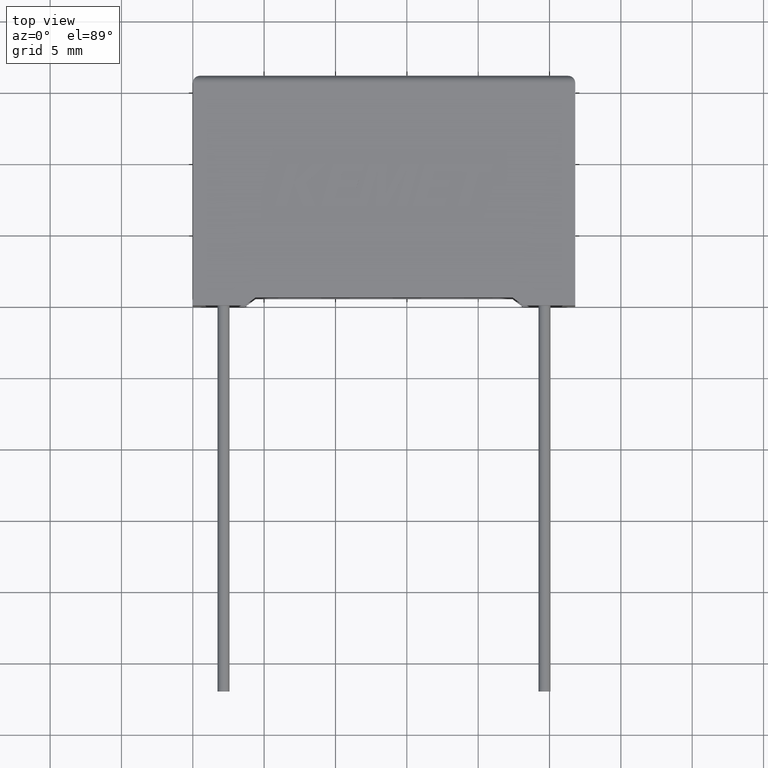
[diagram: clean part render]
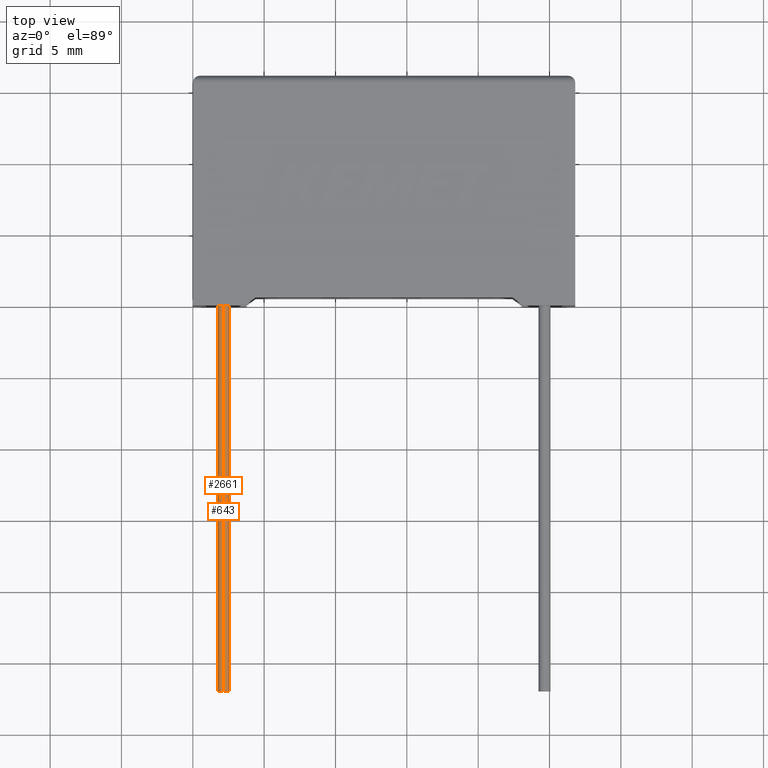
[diagram: same view with one multi-face feature highlighted, each face labeled with its STEP entity id]
A machine part, top view. The highlighted faces form ONE feature: a constant-radius fillet chain: 2 tangent blend faces with common blend radius 0.425 mm. The faces share edges in the B-rep.
Their STEP definitions:
[1] entity #2661 (Cylinder):
#27 = CYLINDRICAL_SURFACE ( 'NONE', #521, 0.4249999999999996003 ) ;
#68 = CARTESIAN_POINT ( 'NONE',  ( 2.150000000000000799, -27.00000000000000000, 4.025000000000000355 ) ) ;
#82 = DIRECTION ( 'NONE',  ( 0.000000000000000000, 0.000000000000000000, 1.000000000000000000 ) ) ;
#105 = EDGE_LOOP ( 'NONE', ( #861, #1336, #2743, #624 ) ) ;
#400 = DIRECTION ( 'NONE',  ( 0.000000000000000000, -1.000000000000000000, 0.000000000000000000 ) ) ;
#467 = CARTESIAN_POINT ( 'NONE',  ( 2.150000000000000799, 0.7500000000000000000, 3.600000000000000533 ) ) ;
#489 = FACE_OUTER_BOUND ( 'NONE', #105, .T. ) ;
#521 = AXIS2_PLACEMENT_3D ( 'NONE', #993, #1236, #82 ) ;
#624 = ORIENTED_EDGE ( 'NONE', *, *, #2993, .T. ) ;
#669 = CARTESIAN_POINT ( 'NONE',  ( 2.150000000000000799, -27.00000000000000000, 3.175000000000000266 ) ) ;
#861 = ORIENTED_EDGE ( 'NONE', *, *, #1328, .F. ) ;
#901 = CIRCLE ( 'NONE', #1700, 0.4250000000000000444 ) ;
#922 = DIRECTION ( 'NONE',  ( 0.000000000000000000, -1.000000000000000000, 0.000000000000000000 ) ) ;
#983 = AXIS2_PLACEMENT_3D ( 'NONE', #2013, #400, #2216 ) ;
#993 = CARTESIAN_POINT ( 'NONE',  ( 2.150000000000000799, -27.00000000000000000, 3.600000000000000533 ) ) ;
#1089 = CARTESIAN_POINT ( 'NONE',  ( 2.150000000000000799, 0.7500000000000000000, 3.175000000000000266 ) ) ;
#1154 = DIRECTION ( 'NONE',  ( -0.000000000000000000, 1.000000000000000000, -0.000000000000000000 ) ) ;
#1172 = LINE ( 'NONE', #669, #2497 ) ;
#1217 = DIRECTION ( 'NONE',  ( -0.000000000000000000, 1.000000000000000000, -0.000000000000000000 ) ) ;
#1236 = DIRECTION ( 'NONE',  ( -0.000000000000000000, 1.000000000000000000, -0.000000000000000000 ) ) ;
#1312 = CARTESIAN_POINT ( 'NONE',  ( 2.150000000000000799, -27.00000000000000000, 3.175000000000000266 ) ) ;
#1328 = EDGE_CURVE ( 'NONE', #1675, #2550, #1172, .T. ) ;
#1336 = ORIENTED_EDGE ( 'NONE', *, *, #1874, .F. ) ;
#1675 = VERTEX_POINT ( 'NONE', #1312 ) ;
#1700 = AXIS2_PLACEMENT_3D ( 'NONE', #467, #922, #2321 ) ;
#1789 = EDGE_CURVE ( 'NONE', #2219, #2498, #2406, .T. ) ;
#1874 = EDGE_CURVE ( 'NONE', #2219, #1675, #2299, .T. ) ;
#2013 = CARTESIAN_POINT ( 'NONE',  ( 2.150000000000000799, -27.00000000000000000, 3.600000000000000533 ) ) ;
#2216 = DIRECTION ( 'NONE',  ( 0.000000000000000000, 0.000000000000000000, -1.000000000000000000 ) ) ;
#2219 = VERTEX_POINT ( 'NONE', #2461 ) ;
#2299 = CIRCLE ( 'NONE', #983, 0.4250000000000000444 ) ;
#2321 = DIRECTION ( 'NONE',  ( 0.000000000000000000, 0.000000000000000000, -1.000000000000000000 ) ) ;
#2406 = LINE ( 'NONE', #68, #2957 ) ;
#2461 = CARTESIAN_POINT ( 'NONE',  ( 2.150000000000000799, -27.00000000000000000, 4.025000000000000355 ) ) ;
#2497 = VECTOR ( 'NONE', #1154, 1000.000000000000000 ) ;
#2498 = VERTEX_POINT ( 'NONE', #2513 ) ;
#2513 = CARTESIAN_POINT ( 'NONE',  ( 2.150000000000000799, 0.7500000000000000000, 4.025000000000000355 ) ) ;
#2550 = VERTEX_POINT ( 'NONE', #1089 ) ;
#2661 = ADVANCED_FACE ( 'NONE', ( #489 ), #27, .T. ) ;
#2743 = ORIENTED_EDGE ( 'NONE', *, *, #1789, .T. ) ;
#2957 = VECTOR ( 'NONE', #1217, 1000.000000000000000 ) ;
#2993 = EDGE_CURVE ( 'NONE', #2498, #2550, #901, .T. ) ;
[2] entity #643 (Cylinder):
#68 = CARTESIAN_POINT ( 'NONE',  ( 2.150000000000000799, -27.00000000000000000, 4.025000000000000355 ) ) ;
#136 = AXIS2_PLACEMENT_3D ( 'NONE', #1997, #3006, #2711 ) ;
#262 = AXIS2_PLACEMENT_3D ( 'NONE', #988, #338, #2679 ) ;
#294 = ORIENTED_EDGE ( 'NONE', *, *, #1488, .T. ) ;
#310 = CIRCLE ( 'NONE', #262, 0.4250000000000000444 ) ;
#338 = DIRECTION ( 'NONE',  ( 0.000000000000000000, -1.000000000000000000, 0.000000000000000000 ) ) ;
#432 = AXIS2_PLACEMENT_3D ( 'NONE', #2171, #1239, #2920 ) ;
#643 = ADVANCED_FACE ( 'NONE', ( #1302 ), #2509, .T. ) ;
#669 = CARTESIAN_POINT ( 'NONE',  ( 2.150000000000000799, -27.00000000000000000, 3.175000000000000266 ) ) ;
#988 = CARTESIAN_POINT ( 'NONE',  ( 2.150000000000000799, -27.00000000000000000, 3.600000000000000533 ) ) ;
#1089 = CARTESIAN_POINT ( 'NONE',  ( 2.150000000000000799, 0.7500000000000000000, 3.175000000000000266 ) ) ;
#1154 = DIRECTION ( 'NONE',  ( -0.000000000000000000, 1.000000000000000000, -0.000000000000000000 ) ) ;
#1172 = LINE ( 'NONE', #669, #2497 ) ;
#1217 = DIRECTION ( 'NONE',  ( -0.000000000000000000, 1.000000000000000000, -0.000000000000000000 ) ) ;
#1239 = DIRECTION ( 'NONE',  ( 0.000000000000000000, -1.000000000000000000, 0.000000000000000000 ) ) ;
#1302 = FACE_OUTER_BOUND ( 'NONE', #1843, .T. ) ;
#1312 = CARTESIAN_POINT ( 'NONE',  ( 2.150000000000000799, -27.00000000000000000, 3.175000000000000266 ) ) ;
#1328 = EDGE_CURVE ( 'NONE', #1675, #2550, #1172, .T. ) ;
#1488 = EDGE_CURVE ( 'NONE', #2550, #2498, #2795, .T. ) ;
#1554 = ORIENTED_EDGE ( 'NONE', *, *, #1789, .F. ) ;
#1675 = VERTEX_POINT ( 'NONE', #1312 ) ;
#1789 = EDGE_CURVE ( 'NONE', #2219, #2498, #2406, .T. ) ;
#1843 = EDGE_LOOP ( 'NONE', ( #2036, #2279, #294, #1554 ) ) ;
#1997 = CARTESIAN_POINT ( 'NONE',  ( 2.150000000000000799, -27.00000000000000000, 3.600000000000000533 ) ) ;
#2036 = ORIENTED_EDGE ( 'NONE', *, *, #2187, .F. ) ;
#2171 = CARTESIAN_POINT ( 'NONE',  ( 2.150000000000000799, 0.7500000000000000000, 3.600000000000000533 ) ) ;
#2187 = EDGE_CURVE ( 'NONE', #1675, #2219, #310, .T. ) ;
#2219 = VERTEX_POINT ( 'NONE', #2461 ) ;
#2279 = ORIENTED_EDGE ( 'NONE', *, *, #1328, .T. ) ;
#2406 = LINE ( 'NONE', #68, #2957 ) ;
#2461 = CARTESIAN_POINT ( 'NONE',  ( 2.150000000000000799, -27.00000000000000000, 4.025000000000000355 ) ) ;
#2497 = VECTOR ( 'NONE', #1154, 1000.000000000000000 ) ;
#2498 = VERTEX_POINT ( 'NONE', #2513 ) ;
#2509 = CYLINDRICAL_SURFACE ( 'NONE', #136, 0.4249999999999996003 ) ;
#2513 = CARTESIAN_POINT ( 'NONE',  ( 2.150000000000000799, 0.7500000000000000000, 4.025000000000000355 ) ) ;
#2550 = VERTEX_POINT ( 'NONE', #1089 ) ;
#2679 = DIRECTION ( 'NONE',  ( 0.000000000000000000, 0.000000000000000000, -1.000000000000000000 ) ) ;
#2711 = DIRECTION ( 'NONE',  ( 0.000000000000000000, 0.000000000000000000, 1.000000000000000000 ) ) ;
#2795 = CIRCLE ( 'NONE', #432, 0.4250000000000000444 ) ;
#2920 = DIRECTION ( 'NONE',  ( 0.000000000000000000, 0.000000000000000000, -1.000000000000000000 ) ) ;
#2957 = VECTOR ( 'NONE', #1217, 1000.000000000000000 ) ;
#3006 = DIRECTION ( 'NONE',  ( -0.000000000000000000, 1.000000000000000000, -0.000000000000000000 ) ) ;